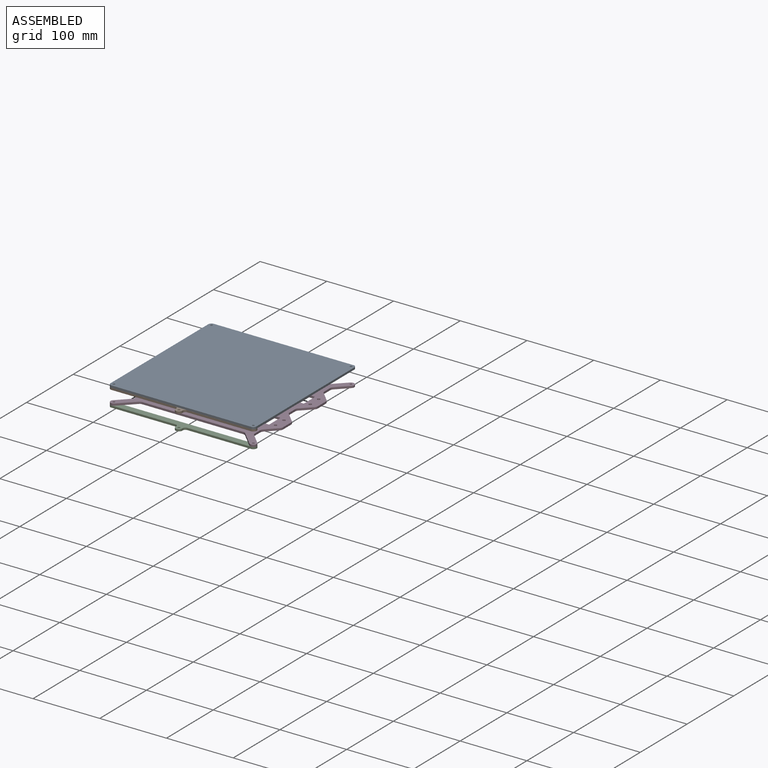
[diagram: assembled view]
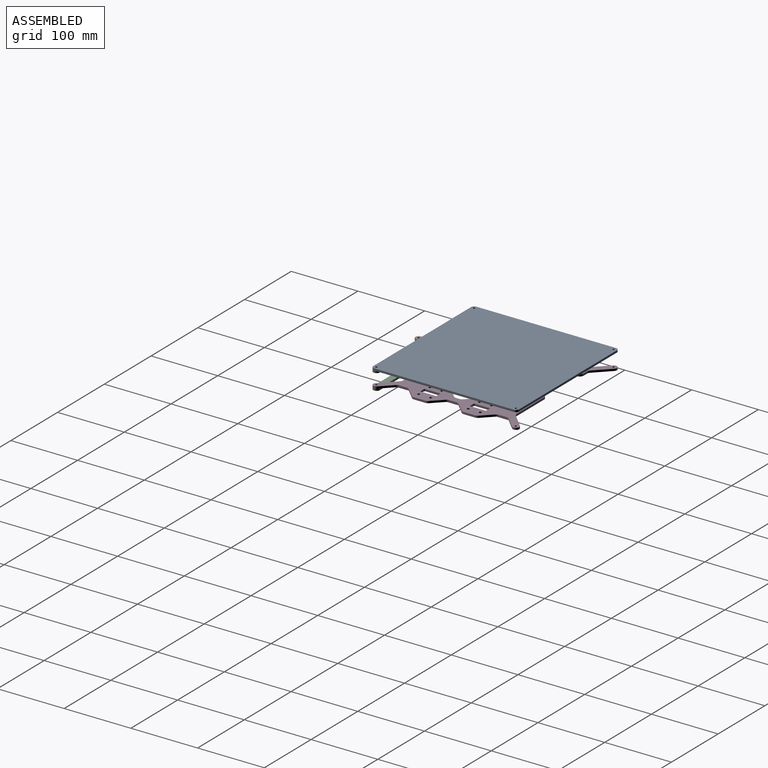
[diagram: assembled view, second angle]
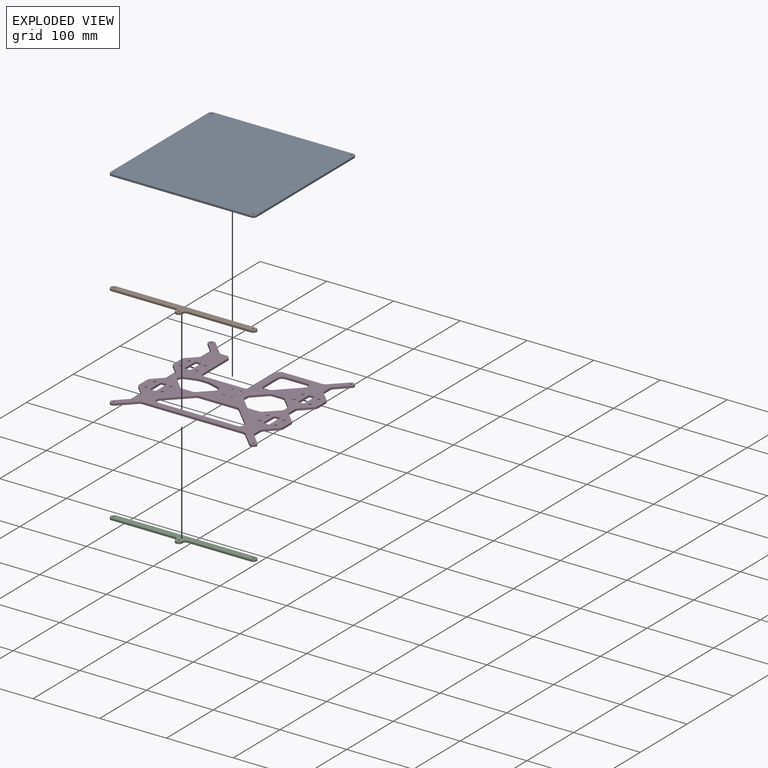
[diagram: exploded view]
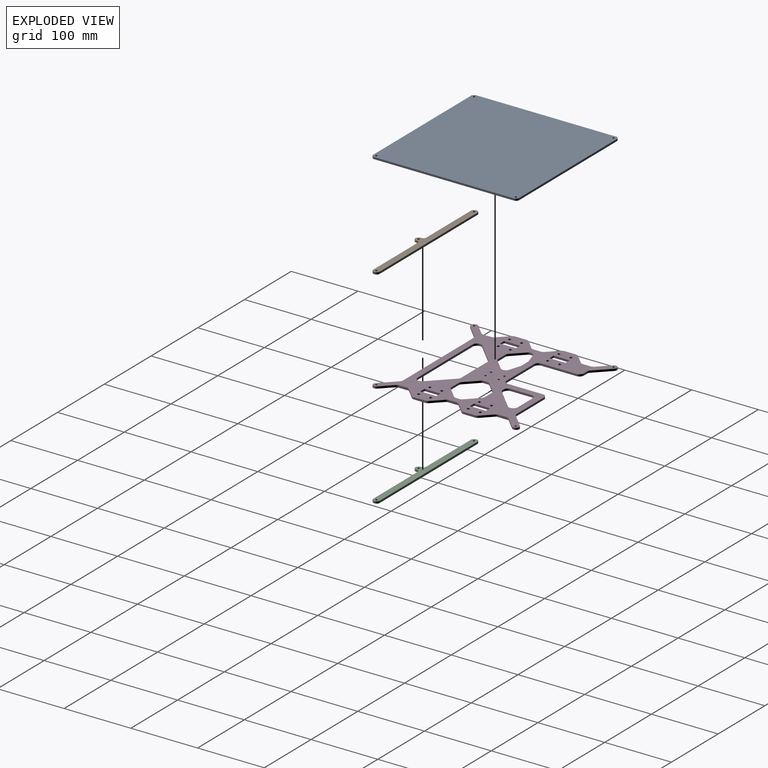
[diagram: exploded view, second angle]
ASSEMBLY  parts=4 mates=2
PART A: 14 faces, bbox 218.8x218.8x3 mm
  f0: plane 210.37x3mm, normal (0,-1,0), area 631.1mm2, adj f1,f10,f12,f13
  f1: cylinder r=4.95mm len=4.22mm, axis (0,0,-1), area 19.2mm2, adj f0,f2,f12,f13
  f2: plane 210.37x3mm, normal (1,0,0), area 631.1mm2, adj f1,f3,f12,f13
  f3: cylinder r=4.95mm len=4.22mm, axis (0,0,-1), area 19.2mm2, adj f2,f4,f12,f13
  f4: plane 210.37x3mm, normal (0,1,0), area 631.1mm2, adj f3,f5,f12,f13
  f5: cylinder r=4.95mm len=4.22mm, axis (0,0,-1), area 19.2mm2, adj f4,f6,f12,f13
  f6: plane 210.37x3mm, normal (-1,0,0), area 631.1mm2, adj f5,f10,f12,f13
  f7: cylinder r=1.6mm len=3.2mm, axis (0,0,-1), area 30.2mm2, adj f12,f13
  f8: cylinder r=1.6mm len=3.2mm, axis (0,0,-1), area 30.2mm2, adj f12,f13
  f9: cylinder r=1.6mm len=3.2mm, axis (0,0,-1), area 30.2mm2, adj f12,f13
  f10: cylinder r=4.95mm len=4.22mm, axis (0,0,-1), area 19.2mm2, adj f0,f6,f12,f13
  f11: cylinder r=1.6mm len=3.2mm, axis (0,0,-1), area 30.2mm2, adj f12,f13
  f12: plane 218.8x218.8mm, normal (0,0,1), area 47823.8mm2, adj f0,f1,f2,f3,f4,f5,f6,f7
  f13: plane 218.8x218.8mm, normal (0,0,-1), area 47823.8mm2, adj f0,f1,f2,f3,f4,f5,f6,f7
PART B: 15 faces, bbox 21.4x221.9x3 mm
  f0: plane 95.55x3mm, normal (-1,0,0), area 286.7mm2, adj f1,f11,f13,f14
  f1: extruded ~9.9x4.95mm, area 46.7mm2, adj f0,f2,f13,f14
  f2: plane 209x3mm, normal (1,0,0), area 627mm2, adj f1,f3,f13,f14
  f3: extruded ~9.9x4.95mm, area 46.7mm2, adj f2,f4,f13,f14
  f4: plane 95.55x3mm, normal (-1,0,0), area 286.7mm2, adj f3,f5,f13,f14
  f5: cylinder r=4mm len=4mm, axis (0,0,-1), area 18.8mm2, adj f4,f6,f13,f14
  f6: plane 3x1.05mm, normal (0,1,0), area 3.2mm2, adj f5,f7,f13,f14
  f7: extruded ~9.9x4.95mm, area 46.7mm2, adj f6,f8,f13,f14
  f8: plane 3x1.05mm, normal (0,-1,0), area 3.2mm2, adj f7,f11,f13,f14
  f9: cylinder r=1.6mm len=3.2mm, axis (0,0,-1), area 30.2mm2, adj f13,f14
  f10: cylinder r=1.6mm len=3.2mm, axis (0,0,-1), area 30.2mm2, adj f13,f14
  f11: cylinder r=4mm len=4mm, axis (0,0,-1), area 18.8mm2, adj f0,f8,f13,f14
  f12: cylinder r=1.6mm len=3.2mm, axis (0,0,-1), area 30.2mm2, adj f13,f14
  f13: plane 221.87x21.38mm, normal (0,0,1), area 2217.2mm2, adj f0,f1,f2,f3,f4,f5,f6,f7
  f14: plane 221.87x21.38mm, normal (0,0,-1), area 2217.2mm2, adj f0,f1,f2,f3,f4,f5,f6,f7
PART C: same geometry as B
PART D: 170 faces, bbox 221.8x221.8x3 mm
  f0: cylinder r=6mm len=4.24mm, axis (0,0,-1), area 14.1mm2, adj f1,f158,f168,f169
  f1: plane 21.24x21.24mm, normal (-0.71,-0.71,0), area 90.1mm2, adj f0,f2,f168,f169
  f2: extruded ~8.45x8.45mm, area 46.7mm2, adj f1,f3,f168,f169
  f3: plane 16.24x16.24mm, normal (0.71,0.71,0), area 68.9mm2, adj f2,f4,f168,f169
  f4: cylinder r=6mm len=4.24mm, axis (0,0,-1), area 14.1mm2, adj f3,f5,f168,f169
  f5: plane 11.58x3mm, normal (1,0,0), area 34.7mm2, adj f4,f6,f168,f169
  f6: cylinder r=6mm len=4.24mm, axis (0,0,-1), area 14.1mm2, adj f5,f7,f168,f169
  f7: plane 14.49x14.49mm, normal (0.71,-0.71,0), area 61.5mm2, adj f6,f8,f168,f169
  f8: cylinder r=6mm len=4.24mm, axis (0,0,-1), area 14.1mm2, adj f7,f9,f168,f169
  f9: plane 17.03x3mm, normal (1,0,0), area 51.1mm2, adj f8,f10,f168,f169
  f10: cylinder r=6mm len=4.24mm, axis (0,0,-1), area 14.1mm2, adj f9,f11,f168,f169
  f11: plane 14.49x14.49mm, normal (0.71,0.71,0), area 61.5mm2, adj f10,f12,f168,f169
  f12: cylinder r=6mm len=4.24mm, axis (0,0,-1), area 14.1mm2, adj f11,f13,f168,f169
  f13: plane 11.48x3mm, normal (1,0,0), area 34.4mm2, adj f12,f14,f168,f169
  f14: cylinder r=6mm len=4.24mm, axis (0,0,-1), area 14.1mm2, adj f13,f15,f168,f169
  f15: plane 14.49x14.49mm, normal (0.71,-0.71,0), area 61.5mm2, adj f14,f16,f168,f169
  f16: cylinder r=6mm len=4.24mm, axis (0,0,-1), area 14.1mm2, adj f15,f17,f168,f169
  f17: plane 17.03x3mm, normal (1,0,0), area 51.1mm2, adj f16,f18,f168,f169
  f18: cylinder r=6mm len=4.24mm, axis (0,0,-1), area 14.1mm2, adj f17,f19,f168,f169
  f19: plane 14.49x14.49mm, normal (0.71,0.71,0), area 61.5mm2, adj f18,f20,f168,f169
  f20: cylinder r=6mm len=4.24mm, axis (0,0,-1), area 14.1mm2, adj f19,f21,f168,f169
  f21: plane 12.03x3mm, normal (1,0,0), area 36.1mm2, adj f20,f22,f168,f169
  f22: cylinder r=6mm len=4.24mm, axis (0,0,-1), area 14.1mm2, adj f21,f23,f168,f169
  f23: plane 16.24x16.24mm, normal (0.71,-0.71,0), area 68.9mm2, adj f22,f24,f168,f169
  f24: extruded ~8.45x8.45mm, area 46.7mm2, adj f23,f25,f168,f169
  f25: plane 21.24x21.24mm, normal (-0.71,0.71,0), area 90.1mm2, adj f24,f26,f168,f169
  f26: cylinder r=6mm len=4.24mm, axis (0,0,-1), area 14.1mm2, adj f25,f27,f168,f169
  f27: plane 58.91x3mm, normal (0,1,0), area 176.7mm2, adj f26,f28,f168,f169
  f28: cylinder r=6.6mm len=6.6mm, axis (0,0,-1), area 31.1mm2, adj f27,f29,f168,f169
  f29: plane 52.3x3mm, normal (-1,0,0), area 156.9mm2, adj f28,f30,f168,f169
  f30: cylinder r=6.6mm len=6.6mm, axis (0,0,-1), area 31.1mm2, adj f29,f31,f168,f169
  f31: plane 58.8x3mm, normal (0,1,0), area 176.4mm2, adj f30,f32,f168,f169
  f32: cylinder r=6.6mm len=6.6mm, axis (0,0,-1), area 31.1mm2, adj f31,f33,f168,f169
  f33: plane 52.3x3mm, normal (1,0,0), area 156.9mm2, adj f32,f34,f168,f169
  f34: cylinder r=6.6mm len=6.6mm, axis (0,0,-1), area 31.1mm2, adj f33,f35,f168,f169
  f35: plane 6.91x3mm, normal (0,1,0), area 20.7mm2, adj f34,f36,f168,f169
  f36: cylinder r=6mm len=4.24mm, axis (0,0,-1), area 14.1mm2, adj f35,f37,f168,f169
  f37: plane 21.24x21.24mm, normal (0.71,0.71,0), area 90.1mm2, adj f36,f38,f168,f169
  f38: extruded ~8.45x8.45mm, area 46.7mm2, adj f37,f39,f168,f169
  f39: plane 16.24x16.24mm, normal (-0.71,-0.71,0), area 68.9mm2, adj f38,f40,f168,f169
  f40: cylinder r=6mm len=4.24mm, axis (0,0,-1), area 14.1mm2, adj f39,f41,f168,f169
  f41: plane 12.03x3mm, normal (-1,0,0), area 36.1mm2, adj f40,f42,f168,f169
  f42: cylinder r=6mm len=4.24mm, axis (0,0,-1), area 14.1mm2, adj f41,f43,f168,f169
  f43: plane 14.49x14.49mm, normal (-0.71,0.71,0), area 61.5mm2, adj f42,f44,f168,f169
  f44: cylinder r=6mm len=4.24mm, axis (0,0,-1), area 14.1mm2, adj f43,f45,f168,f169
  f45: plane 17.03x3mm, normal (-1,0,0), area 51.1mm2, adj f44,f46,f168,f169
  f46: cylinder r=6mm len=4.24mm, axis (0,0,-1), area 14.1mm2, adj f45,f47,f168,f169
  f47: plane 14.49x14.49mm, normal (-0.71,-0.71,0), area 61.5mm2, adj f46,f48,f168,f169
  f48: cylinder r=6mm len=4.24mm, axis (0,0,-1), area 14.1mm2, adj f47,f49,f168,f169
  f49: plane 11.03x3mm, normal (-1,0,0), area 33.1mm2, adj f48,f50,f168,f169
  f50: cylinder r=6mm len=4.24mm, axis (0,0,-1), area 14.1mm2, adj f49,f51,f168,f169
  f51: plane 14.49x14.49mm, normal (-0.71,0.71,0), area 61.5mm2, adj f50,f52,f168,f169
  f52: cylinder r=6mm len=4.24mm, axis (0,0,-1), area 14.1mm2, adj f51,f53,f168,f169
  f53: plane 17.03x3mm, normal (-1,0,0), area 51.1mm2, adj f52,f54,f168,f169
  f54: cylinder r=6mm len=4.24mm, axis (0,0,-1), area 14.1mm2, adj f53,f55,f168,f169
  f55: plane 14.49x14.49mm, normal (-0.71,-0.71,0), area 61.5mm2, adj f54,f56,f168,f169
  f56: cylinder r=6mm len=4.24mm, axis (0,0,-1), area 14.1mm2, adj f55,f57,f168,f169
  f57: plane 12.03x3mm, normal (-1,0,0), area 36.1mm2, adj f56,f58,f168,f169
  f58: cylinder r=6mm len=4.24mm, axis (0,0,-1), area 14.1mm2, adj f57,f59,f168,f169
  f59: plane 16.24x16.24mm, normal (-0.71,0.71,0), area 68.9mm2, adj f58,f60,f168,f169
  f60: extruded ~8.45x8.45mm, area 46.7mm2, adj f59,f61,f168,f169
  f61: plane 21.24x21.24mm, normal (0.71,-0.71,0), area 90.1mm2, adj f60,f62,f168,f169
  f62: cylinder r=6mm len=4.24mm, axis (0,0,-1), area 14.1mm2, adj f61,f158,f168,f169
  f63: cylinder r=6.6mm len=6.6mm, axis (0,0,-1), area 31.1mm2, adj f64,f159,f168,f169
  f64: plane 32.27x3mm, normal (0,-1,0), area 96.8mm2, adj f63,f65,f168,f169
  f65: cylinder r=6.6mm len=11.27mm, axis (0,0,-1), area 46.7mm2, adj f64,f66,f168,f169
  f66: plane 30.8x30.8mm, normal (-0.71,0.71,0), area 130.7mm2, adj f65,f67,f168,f169
  f67: cylinder r=6.6mm len=4.67mm, axis (0,0,-1), area 15.6mm2, adj f66,f68,f168,f169
  f68: plane 3x1.47mm, normal (0,1,0), area 4.4mm2, adj f67,f69,f168,f169
  f69: cylinder r=6.6mm len=6.6mm, axis (0,0,-1), area 31.1mm2, adj f68,f159,f168,f169
  f70: plane 22.1x3mm, normal (-1,0,0), area 66.3mm2, adj f71,f160,f168,f169
  f71: cylinder r=1mm len=3mm, axis (0,0,-1), area 4.7mm2, adj f70,f72,f168,f169
  f72: plane 7x3mm, normal (0,1,0), area 21mm2, adj f71,f73,f168,f169
  f73: cylinder r=1mm len=3mm, axis (0,0,-1), area 4.7mm2, adj f72,f74,f168,f169
  f74: plane 22.1x3mm, normal (1,0,0), area 66.3mm2, adj f73,f75,f168,f169
  f75: cylinder r=1mm len=3mm, axis (0,0,-1), area 4.7mm2, adj f74,f76,f168,f169
  f76: plane 7x3mm, normal (0,-1,0), area 21mm2, adj f75,f160,f168,f169
  f77: plane 7x3mm, normal (0,-1,0), area 21mm2, adj f78,f161,f168,f169
  f78: cylinder r=1mm len=3mm, axis (0,0,-1), area 4.7mm2, adj f77,f79,f168,f169
  f79: plane 22.1x3mm, normal (-1,0,0), area 66.3mm2, adj f78,f80,f168,f169
  f80: cylinder r=1mm len=3mm, axis (0,0,-1), area 4.7mm2, adj f79,f81,f168,f169
  f81: plane 7x3mm, normal (0,1,0), area 21mm2, adj f80,f82,f168,f169
  f82: cylinder r=1mm len=3mm, axis (0,0,-1), area 4.7mm2, adj f81,f83,f168,f169
  f83: plane 22.1x3mm, normal (1,0,0), area 66.3mm2, adj f82,f161,f168,f169
  f84: plane 16.49x16.49mm, normal (-0.71,-0.71,0), area 69.9mm2, adj f85,f162,f168,f169
  f85: cylinder r=6mm len=4.24mm, axis (0,0,-1), area 14.1mm2, adj f84,f86,f168,f169
  f86: plane 5.03x3mm, normal (-1,0,0), area 15.1mm2, adj f85,f87,f168,f169
  f87: cylinder r=6mm len=4.24mm, axis (0,0,-1), area 14.1mm2, adj f86,f88,f168,f169
  f88: plane 16.49x16.49mm, normal (-0.71,0.71,0), area 69.9mm2, adj f87,f89,f168,f169
  f89: cylinder r=6mm len=4.24mm, axis (0,0,-1), area 14.1mm2, adj f88,f90,f168,f169
  f90: plane 15.03x3mm, normal (0,1,0), area 45.1mm2, adj f89,f91,f168,f169
  f91: cylinder r=6mm len=4.24mm, axis (0,0,-1), area 14.1mm2, adj f90,f92,f168,f169
  f92: plane 16.49x16.49mm, normal (0.71,0.71,0), area 69.9mm2, adj f91,f93,f168,f169
  f93: cylinder r=6mm len=4.24mm, axis (0,0,-1), area 14.1mm2, adj f92,f94,f168,f169
  f94: plane 5.03x3mm, normal (1,0,0), area 15.1mm2, adj f93,f95,f168,f169
  f95: cylinder r=6mm len=4.24mm, axis (0,0,-1), area 14.1mm2, adj f94,f96,f168,f169
  f96: plane 16.49x16.49mm, normal (0.71,-0.71,0), area 69.9mm2, adj f95,f97,f168,f169
  f97: cylinder r=6mm len=4.24mm, axis (0,0,-1), area 14.1mm2, adj f96,f98,f168,f169
  f98: plane 15.03x3mm, normal (0,-1,0), area 45.1mm2, adj f97,f162,f168,f169
  f99: plane 13.03x3mm, normal (0,-1,0), area 39.1mm2, adj f100,f163,f168,f169
  f100: cylinder r=6.6mm len=3mm, axis (0,0,-1), area 6mm2, adj f99,f101,f168,f169
  f101: plane 16.89x5.25mm, normal (-0.3,-0.95,0), area 53mm2, adj f100,f102,f168,f169
  f102: cylinder r=6.6mm len=6.3mm, axis (0,0,-1), area 25.1mm2, adj f101,f103,f168,f169
  f103: plane 3x0.17mm, normal (-1,0,0), area 0.5mm2, adj f102,f104,f168,f169
  f104: cylinder r=6mm len=4.24mm, axis (0,0,-1), area 14.1mm2, adj f103,f105,f168,f169
  f105: plane 16.49x16.49mm, normal (-0.71,0.71,0), area 69.9mm2, adj f104,f106,f168,f169
  f106: cylinder r=6mm len=4.24mm, axis (0,0,-1), area 14.1mm2, adj f105,f107,f168,f169
  f107: plane 15.03x3mm, normal (0,1,0), area 45.1mm2, adj f106,f108,f168,f169
  f108: cylinder r=6mm len=4.24mm, axis (0,0,-1), area 14.1mm2, adj f107,f109,f168,f169
  f109: plane 16.49x16.49mm, normal (0.71,0.71,0), area 69.9mm2, adj f108,f110,f168,f169
  f110: cylinder r=6mm len=4.24mm, axis (0,0,-1), area 14.1mm2, adj f109,f111,f168,f169
  f111: plane 3x0.17mm, normal (1,0,0), area 0.5mm2, adj f110,f112,f168,f169
  f112: cylinder r=6.6mm len=6.3mm, axis (0,0,-1), area 25.1mm2, adj f111,f113,f168,f169
  f113: plane 16.89x5.25mm, normal (0.3,-0.95,0), area 53mm2, adj f112,f163,f168,f169
  f114: cylinder r=6.6mm len=4.67mm, axis (0,0,-1), area 15.6mm2, adj f115,f164,f168,f169
  f115: plane 30.8x30.8mm, normal (-0.71,-0.71,0), area 130.7mm2, adj f114,f116,f168,f169
  f116: cylinder r=6.6mm len=11.27mm, axis (0,0,-1), area 46.7mm2, adj f115,f117,f168,f169
  f117: plane 117.73x3mm, normal (0,1,0), area 353.2mm2, adj f116,f118,f168,f169
  f118: cylinder r=6.6mm len=11.27mm, axis (0,0,-1), area 46.7mm2, adj f117,f119,f168,f169
  f119: plane 30.8x30.8mm, normal (0.71,-0.71,0), area 130.7mm2, adj f118,f120,f168,f169
  f120: cylinder r=6.6mm len=4.67mm, axis (0,0,-1), area 15.6mm2, adj f119,f164,f168,f169
  f121: cylinder r=1mm len=3mm, axis (0,0,-1), area 4.7mm2, adj f122,f165,f168,f169
  f122: plane 7x3mm, normal (0,-1,0), area 21mm2, adj f121,f123,f168,f169
  f123: cylinder r=1mm len=3mm, axis (0,0,-1), area 4.7mm2, adj f122,f124,f168,f169
  f124: plane 22.1x3mm, normal (-1,0,0), area 66.3mm2, adj f123,f125,f168,f169
  f125: cylinder r=1mm len=3mm, axis (0,0,-1), area 4.7mm2, adj f124,f126,f168,f169
  f126: plane 7x3mm, normal (0,1,0), area 21mm2, adj f125,f127,f168,f169
  f127: cylinder r=1mm len=3mm, axis (0,0,-1), area 4.7mm2, adj f126,f165,f168,f169
  f128: cylinder r=1mm len=3mm, axis (0,0,-1), area 4.7mm2, adj f129,f166,f168,f169
  f129: plane 22.1x3mm, normal (1,0,0), area 66.3mm2, adj f128,f130,f168,f169
  f130: cylinder r=1mm len=3mm, axis (0,0,-1), area 4.7mm2, adj f129,f131,f168,f169
  f131: plane 7x3mm, normal (0,-1,0), area 21mm2, adj f130,f132,f168,f169
  f132: cylinder r=1mm len=3mm, axis (0,0,-1), area 4.7mm2, adj f131,f133,f168,f169
  f133: plane 22.1x3mm, normal (-1,0,0), area 66.3mm2, adj f132,f134,f168,f169
  f134: cylinder r=1mm len=3mm, axis (0,0,-1), area 4.7mm2, adj f133,f166,f168,f169
  f135: cylinder r=2.1mm len=4.2mm, axis (0,0,-1), area 39.6mm2, adj f168,f169
  f136: cylinder r=2.1mm len=4.2mm, axis (0,0,-1), area 39.6mm2, adj f168,f169
  f137: cylinder r=1.6mm len=3.2mm, axis (0,0,-1), area 30.2mm2, adj f168,f169
  f138: cylinder r=1.6mm len=3.2mm, axis (0,0,-1), area 30.2mm2, adj f168,f169
  f139: cylinder r=1.6mm len=3.2mm, axis (0,0,-1), area 30.2mm2, adj f168,f169
  f140: cylinder r=2.1mm len=4.2mm, axis (0,0,-1), area 39.6mm2, adj f168,f169
  f141: cylinder r=1.6mm len=3.2mm, axis (0,0,-1), area 30.2mm2, adj f168,f169
  f142: cylinder r=1.6mm len=3.2mm, axis (0,0,-1), area 30.2mm2, adj f168,f169
  f143: cylinder r=2.1mm len=4.2mm, axis (0,0,-1), area 39.6mm2, adj f168,f169
  f144: cylinder r=2.1mm len=4.2mm, axis (0,0,-1), area 39.6mm2, adj f168,f169
  f145: cylinder r=2.1mm len=4.2mm, axis (0,0,-1), area 39.6mm2, adj f168,f169
  f146: cylinder r=2.1mm len=4.2mm, axis (0,0,-1), area 39.6mm2, adj f168,f169
  f147: cylinder r=2.1mm len=4.2mm, axis (0,0,-1), area 39.6mm2, adj f168,f169
  f148: cylinder r=2.1mm len=4.2mm, axis (0,0,-1), area 39.6mm2, adj f168,f169
  f149: cylinder r=2.1mm len=4.2mm, axis (0,0,-1), area 39.6mm2, adj f168,f169
  f150: cylinder r=1.6mm len=3.2mm, axis (0,0,-1), area 30.2mm2, adj f168,f169
  f151: cylinder r=2.1mm len=4.2mm, axis (0,0,-1), area 39.6mm2, adj f168,f169
  f152: cylinder r=1.6mm len=3.2mm, axis (0,0,-1), area 30.2mm2, adj f168,f169
  f153: cylinder r=2.1mm len=4.2mm, axis (0,0,-1), area 39.6mm2, adj f168,f169
  f154: cylinder r=1.6mm len=3.2mm, axis (0,0,-1), area 30.2mm2, adj f168,f169
  f155: cylinder r=2.1mm len=4.2mm, axis (0,0,-1), area 39.6mm2, adj f168,f169
  f156: cylinder r=2.1mm len=4.2mm, axis (0,0,-1), area 39.6mm2, adj f168,f169
  f157: cylinder r=2.1mm len=4.2mm, axis (0,0,-1), area 39.6mm2, adj f168,f169
  f158: plane 151.03x3mm, normal (0,-1,0), area 453.1mm2, adj f0,f62,f168,f169
  f159: plane 30.8x3mm, normal (1,0,0), area 92.4mm2, adj f63,f69,f168,f169
  f160: cylinder r=1mm len=3mm, axis (0,0,-1), area 4.7mm2, adj f70,f76,f168,f169
  f161: cylinder r=1mm len=3mm, axis (0,0,-1), area 4.7mm2, adj f77,f83,f168,f169
  f162: cylinder r=6mm len=4.24mm, axis (0,0,-1), area 14.1mm2, adj f84,f98,f168,f169
  f163: cylinder r=6.6mm len=3mm, axis (0,0,-1), area 6mm2, adj f99,f113,f168,f169
  f164: plane 56.13x3mm, normal (0,-1,0), area 168.4mm2, adj f114,f120,f168,f169
  f165: plane 22.1x3mm, normal (1,0,0), area 66.3mm2, adj f121,f127,f168,f169
  f166: plane 7x3mm, normal (0,1,0), area 21mm2, adj f128,f134,f168,f169
  f167: cylinder r=2.1mm len=4.2mm, axis (0,0,-1), area 39.6mm2, adj f168,f169
  f168: plane 221.77x221.77mm, normal (0,0,1), area 19272.6mm2, adj f0,f1,f2,f3,f4,f5,f6,f7
  f169: plane 221.77x221.77mm, normal (0,0,-1), area 19272.6mm2, adj f0,f1,f2,f3,f4,f5,f6,f7
PLACE A t=(-107.56,-19.57,88.44)mm
PLACE B rot(axis=(0,0,1),90deg) t=(-107.56,-129.07,85.44)mm
PLACE C rot(axis=(0,0,1),90deg) t=(-107.56,-129.07,61.44)mm
PLACE D t=(-107.56,-19.57,64.44)mm
MATE fastened C.f10 <-> D.f154  axis (0,0,1) through (-3.06,-124.07,64.44)mm
MATE fastened A.f1 <-> B.f10  axis (0,0,-1) through (-3.06,-124.07,88.44)mm
